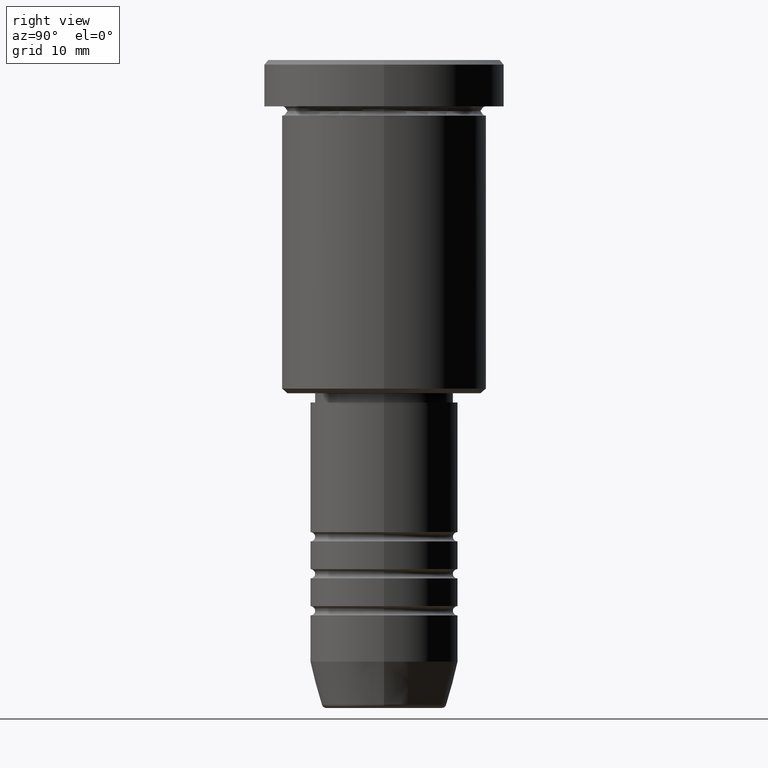
[diagram: clean part render]
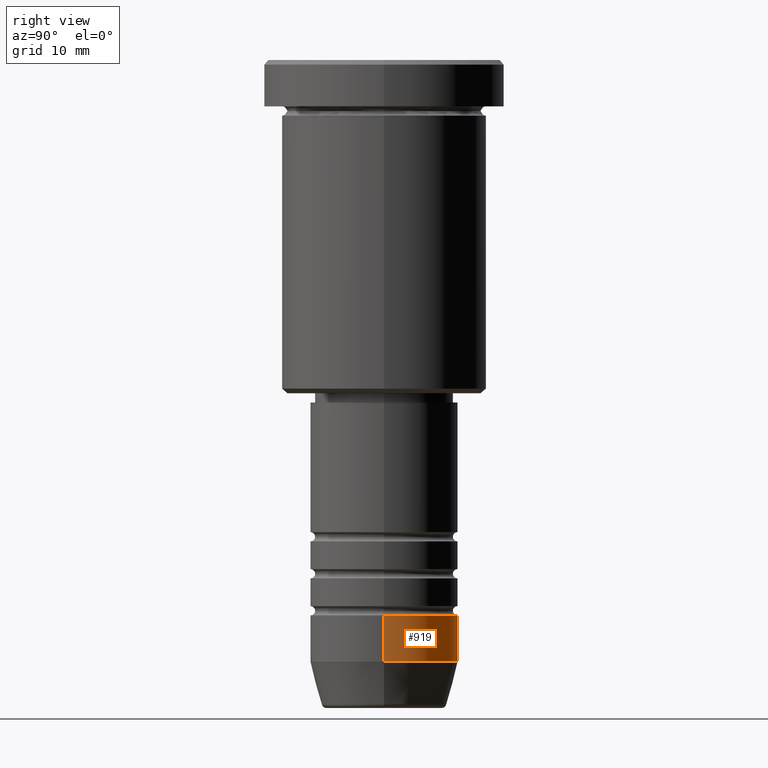
[diagram: same view with one face highlighted and labeled with its STEP entity id]
A machine part, right view. The second image highlights one B-rep face of the part: STEP entity #919.
In plain terms, the highlighted cylindrical surface (partial cylindrical patch) has radius 8 mm, axis along (-0, -0, 1).
Its self-contained STEP definition (entity closure, byte-faithful):
#46 = VERTEX_POINT ( 'NONE', #621 ) ;
#62 = ORIENTED_EDGE ( 'NONE', *, *, #449, .F. ) ;
#121 = DIRECTION ( 'NONE',  ( 1.000000000000000000, 0.000000000000000000, 0.000000000000000000 ) ) ;
#128 = FACE_OUTER_BOUND ( 'NONE', #1131, .T. ) ;
#132 = CARTESIAN_POINT ( 'NONE',  ( 0.000000000000000000, 0.000000000000000000, 0.000000000000000000 ) ) ;
#145 = LINE ( 'NONE', #873, #984 ) ;
#158 = AXIS2_PLACEMENT_3D ( 'NONE', #420, #1046, #222 ) ;
#176 = CIRCLE ( 'NONE', #158, 8.000000000000000000 ) ;
#177 = AXIS2_PLACEMENT_3D ( 'NONE', #132, #386, #381 ) ;
#222 = DIRECTION ( 'NONE',  ( 1.000000000000000000, 0.000000000000000000, 0.000000000000000000 ) ) ;
#252 = VECTOR ( 'NONE', #345, 1000.000000000000000 ) ;
#260 = LINE ( 'NONE', #549, #252 ) ;
#299 = ORIENTED_EDGE ( 'NONE', *, *, #1021, .T. ) ;
#300 = DIRECTION ( 'NONE',  ( -0.000000000000000000, -0.000000000000000000, 1.000000000000000000 ) ) ;
#322 = ORIENTED_EDGE ( 'NONE', *, *, #545, .T. ) ;
#345 = DIRECTION ( 'NONE',  ( -0.000000000000000000, -0.000000000000000000, 1.000000000000000000 ) ) ;
#381 = DIRECTION ( 'NONE',  ( 1.000000000000000000, 0.000000000000000000, 0.000000000000000000 ) ) ;
#386 = DIRECTION ( 'NONE',  ( -0.000000000000000000, -0.000000000000000000, 1.000000000000000000 ) ) ;
#420 = CARTESIAN_POINT ( 'NONE',  ( 0.000000000000000000, 0.000000000000000000, -60.00000000000000711 ) ) ;
#449 = EDGE_CURVE ( 'NONE', #46, #871, #176, .T. ) ;
#458 = CARTESIAN_POINT ( 'NONE',  ( 8.000000000000000000, 0.000000000000000000, -65.00000000000000000 ) ) ;
#513 = DIRECTION ( 'NONE',  ( -0.000000000000000000, -0.000000000000000000, 1.000000000000000000 ) ) ;
#545 = EDGE_CURVE ( 'NONE', #1043, #642, #811, .T. ) ;
#549 = CARTESIAN_POINT ( 'NONE',  ( 8.000000000000000000, 0.000000000000000000, 0.000000000000000000 ) ) ;
#621 = CARTESIAN_POINT ( 'NONE',  ( 8.000000000000000000, 0.000000000000000000, -60.00000000000000711 ) ) ;
#632 = CARTESIAN_POINT ( 'NONE',  ( 0.000000000000000000, 0.000000000000000000, -65.00000000000000000 ) ) ;
#642 = VERTEX_POINT ( 'NONE', #729 ) ;
#729 = CARTESIAN_POINT ( 'NONE',  ( -8.000000000000000000, 9.797174393178825657E-16, -65.00000000000000000 ) ) ;
#772 = AXIS2_PLACEMENT_3D ( 'NONE', #632, #300, #121 ) ;
#811 = CIRCLE ( 'NONE', #772, 8.000000000000000000 ) ;
#857 = CARTESIAN_POINT ( 'NONE',  ( -8.000000000000000000, 9.797174393178825657E-16, -60.00000000000000711 ) ) ;
#871 = VERTEX_POINT ( 'NONE', #857 ) ;
#873 = CARTESIAN_POINT ( 'NONE',  ( -8.000000000000000000, 9.797174393178825657E-16, 0.000000000000000000 ) ) ;
#919 = ADVANCED_FACE ( 'NONE', ( #128 ), #1108, .T. ) ;
#924 = ORIENTED_EDGE ( 'NONE', *, *, #1106, .F. ) ;
#984 = VECTOR ( 'NONE', #513, 1000.000000000000000 ) ;
#1021 = EDGE_CURVE ( 'NONE', #642, #871, #145, .T. ) ;
#1043 = VERTEX_POINT ( 'NONE', #458 ) ;
#1046 = DIRECTION ( 'NONE',  ( -0.000000000000000000, -0.000000000000000000, 1.000000000000000000 ) ) ;
#1106 = EDGE_CURVE ( 'NONE', #1043, #46, #260, .T. ) ;
#1108 = CYLINDRICAL_SURFACE ( 'NONE', #177, 8.000000000000000000 ) ;
#1131 = EDGE_LOOP ( 'NONE', ( #322, #299, #62, #924 ) ) ;